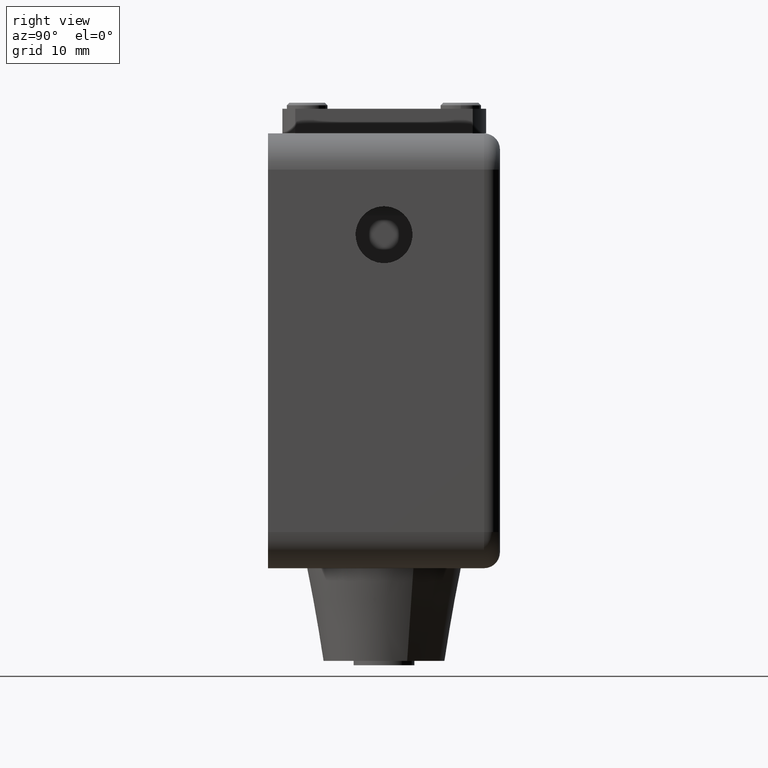
[diagram: clean part render]
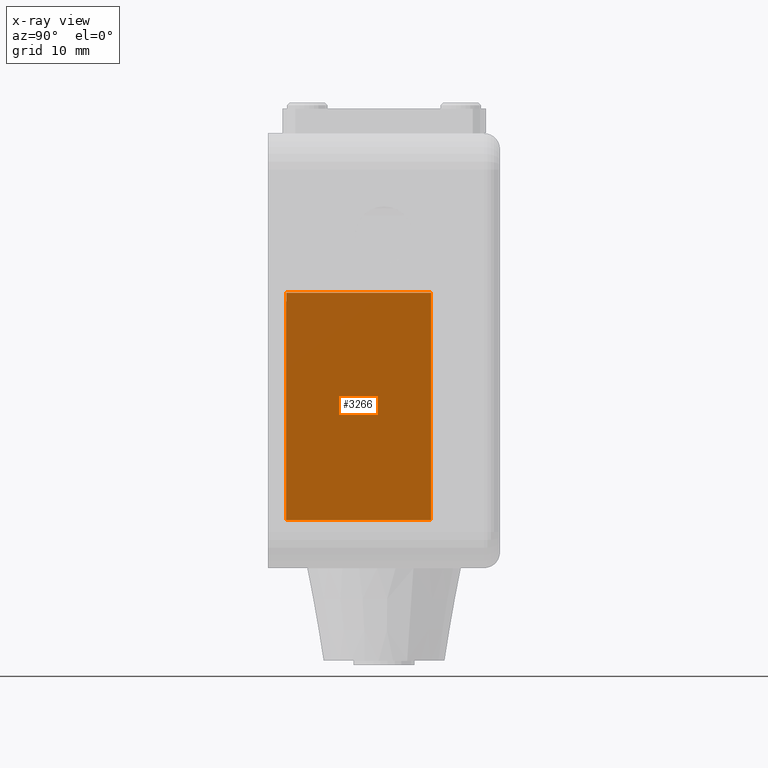
[diagram: x-ray — body ghosted, one internal face saturated and labeled with its STEP entity id]
A machine part, right view, then the same camera in x-ray: the body is ghosted and one INTERNAL B-rep face — a face not visible from any outside direction — is saturated and labeled: STEP entity #3266.
In plain terms, the highlighted planar face has unit normal (1, 0, 0).
Its self-contained STEP definition (entity closure, byte-faithful):
#51 = CARTESIAN_POINT ( 'NONE',  ( 0.04000000000000007000, 0.5625000000000000000, -0.5499999999999998200 ) ) ;
#52 = DIRECTION ( 'NONE',  ( -0.0000000000000000000, -1.000000000000000000, -0.0000000000000000000 ) ) ;
#69 = DIRECTION ( 'NONE',  ( -1.305022926909679700E-016, -0.0000000000000000000, 1.000000000000000000 ) ) ;
#76 = CARTESIAN_POINT ( 'NONE',  ( 0.04000000000000007000, 0.06300000000000000000, -0.5799999999999998500 ) ) ;
#77 = CARTESIAN_POINT ( 'NONE',  ( 0.04000000000000007000, 0.5625000000000000000, -0.5499999999999998200 ) ) ;
#78 = DIRECTION ( 'NONE',  ( -0.0000000000000000000, -1.000000000000000000, -0.0000000000000000000 ) ) ;
#79 = DIRECTION ( 'NONE',  ( -0.0000000000000000000, -1.000000000000000000, -0.0000000000000000000 ) ) ;
#83 = CARTESIAN_POINT ( 'NONE',  ( 0.04000000000000007000, 0.06300000000000000000, -0.5499999999999998200 ) ) ;
#84 = CARTESIAN_POINT ( 'NONE',  ( 0.04000000000000017400, 0.5625000000000000000, -1.335000000000000200 ) ) ;
#85 = DIRECTION ( 'NONE',  ( 0.0000000000000000000, 0.0000000000000000000, -1.000000000000000000 ) ) ;
#1149 = LINE ( 'NONE', #51, #1152 ) ;
#1152 = VECTOR ( 'NONE', #52, 39.37007874015748100 ) ;
#1164 = LINE ( 'NONE', #76, #1167 ) ;
#1167 = VECTOR ( 'NONE', #78, 39.37007874015748100 ) ;
#1168 = LINE ( 'NONE', #77, #1170 ) ;
#1169 = LINE ( 'NONE', #83, #1172 ) ;
#1170 = VECTOR ( 'NONE', #69, 39.37007874015748100 ) ;
#1172 = VECTOR ( 'NONE', #85, 39.37007874015748100 ) ;
#1173 = LINE ( 'NONE', #84, #1175 ) ;
#1175 = VECTOR ( 'NONE', #79, 39.37007874015748100 ) ;
#1538 = VERTEX_POINT ( 'NONE', #66012 ) ;
#3266 = ADVANCED_FACE ( 'NONE', ( #11819 ), #92074, .F. ) ;
#5962 = EDGE_CURVE ( 'NONE', #10798, #39494, #1149, .T. ) ;
#5971 = EDGE_CURVE ( 'NONE', #72627, #1538, #1164, .T. ) ;
#5973 = EDGE_CURVE ( 'NONE', #39693, #10798, #1168, .T. ) ;
#5974 = EDGE_CURVE ( 'NONE', #39494, #72627, #1169, .T. ) ;
#5976 = EDGE_CURVE ( 'NONE', #39693, #10770, #1173, .T. ) ;
#10770 = VERTEX_POINT ( 'NONE', #59245 ) ;
#10798 = VERTEX_POINT ( 'NONE', #59258 ) ;
#11819 = FACE_OUTER_BOUND ( 'NONE', #83593, .T. ) ;
#12338 = AXIS2_PLACEMENT_3D ( 'NONE', #92072, #92076, #92077 ) ;
#23937 = ORIENTED_EDGE ( 'NONE', *, *, #5974, .F. ) ;
#23946 = ORIENTED_EDGE ( 'NONE', *, *, #5962, .F. ) ;
#23963 = ORIENTED_EDGE ( 'NONE', *, *, #5973, .F. ) ;
#24033 = ORIENTED_EDGE ( 'NONE', *, *, #5971, .F. ) ;
#24068 = ORIENTED_EDGE ( 'NONE', *, *, #91244, .T. ) ;
#24139 = ORIENTED_EDGE ( 'NONE', *, *, #5976, .T. ) ;
#37221 = CARTESIAN_POINT ( 'NONE',  ( 0.04000000000000007000, 0.06250000000000000000, -0.5499999999999998200 ) ) ;
#37222 = DIRECTION ( 'NONE',  ( -1.305022926909679700E-016, -0.0000000000000000000, 1.000000000000000000 ) ) ;
#38025 = LINE ( 'NONE', #37221, #38028 ) ;
#38028 = VECTOR ( 'NONE', #37222, 39.37007874015748100 ) ;
#39494 = VERTEX_POINT ( 'NONE', #60505 ) ;
#39693 = VERTEX_POINT ( 'NONE', #60593 ) ;
#44007 = CARTESIAN_POINT ( 'NONE',  ( 0.04000000000000007000, 0.06300000000000000000, -0.5799999999999998500 ) ) ;
#59245 = CARTESIAN_POINT ( 'NONE',  ( 0.04000000000000017400, 0.06250000000000000000, -1.335000000000000200 ) ) ;
#59258 = CARTESIAN_POINT ( 'NONE',  ( 0.04000000000000007000, 0.5625000000000000000, -0.5499999999999998200 ) ) ;
#60505 = CARTESIAN_POINT ( 'NONE',  ( 0.04000000000000007000, 0.06299999999999998700, -0.5499999999999998200 ) ) ;
#60593 = CARTESIAN_POINT ( 'NONE',  ( 0.04000000000000017400, 0.5625000000000000000, -1.335000000000000200 ) ) ;
#66012 = CARTESIAN_POINT ( 'NONE',  ( 0.04000000000000007000, 0.06250000000000000000, -0.5799999999999998500 ) ) ;
#72627 = VERTEX_POINT ( 'NONE', #44007 ) ;
#83593 = EDGE_LOOP ( 'NONE', ( #24068, #24033, #23937, #23946, #23963, #24139 ) ) ;
#91244 = EDGE_CURVE ( 'NONE', #10770, #1538, #38025, .T. ) ;
#92072 = CARTESIAN_POINT ( 'NONE',  ( 0.04000000000000007000, 0.5625000000000000000, -0.5499999999999998200 ) ) ;
#92074 = PLANE ( 'NONE',  #12338 ) ;
#92076 = DIRECTION ( 'NONE',  ( 1.000000000000000000, -0.0000000000000000000, 1.305022926909679700E-016 ) ) ;
#92077 = DIRECTION ( 'NONE',  ( 1.305022926909679700E-016, 0.0000000000000000000, -1.000000000000000000 ) ) ;